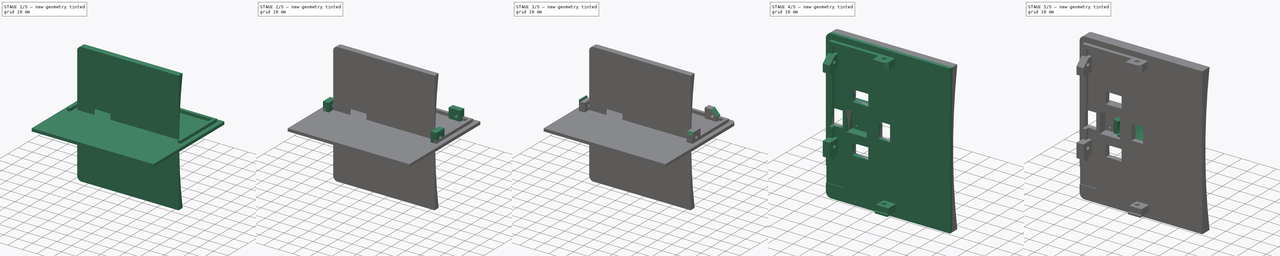
[diagram: build sequence overview — one tinted view per stage of 5, left to right]
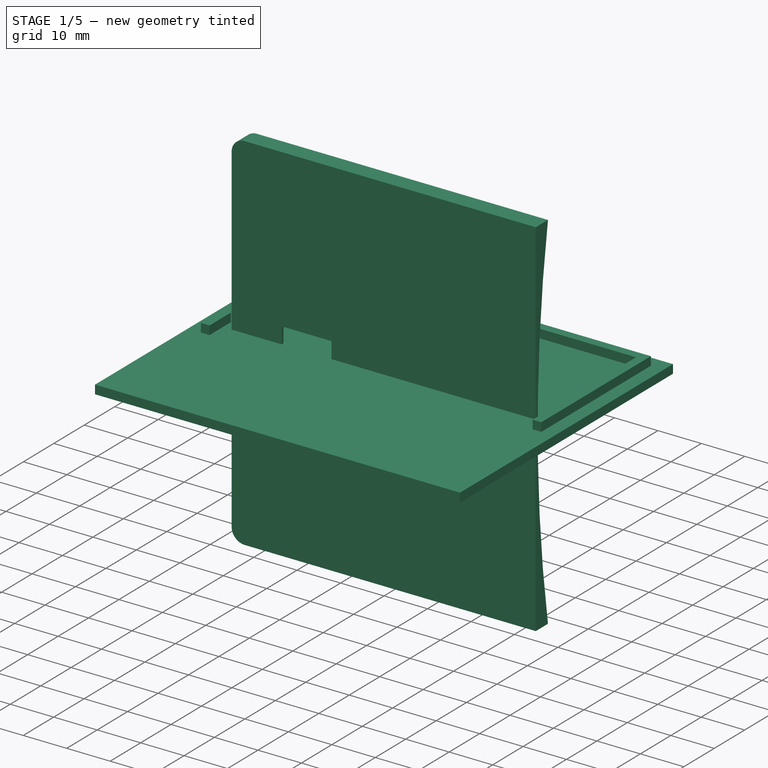
[diagram: stage 1 of 5 — iso view after this stage's code; geometry added in this stage tinted green]
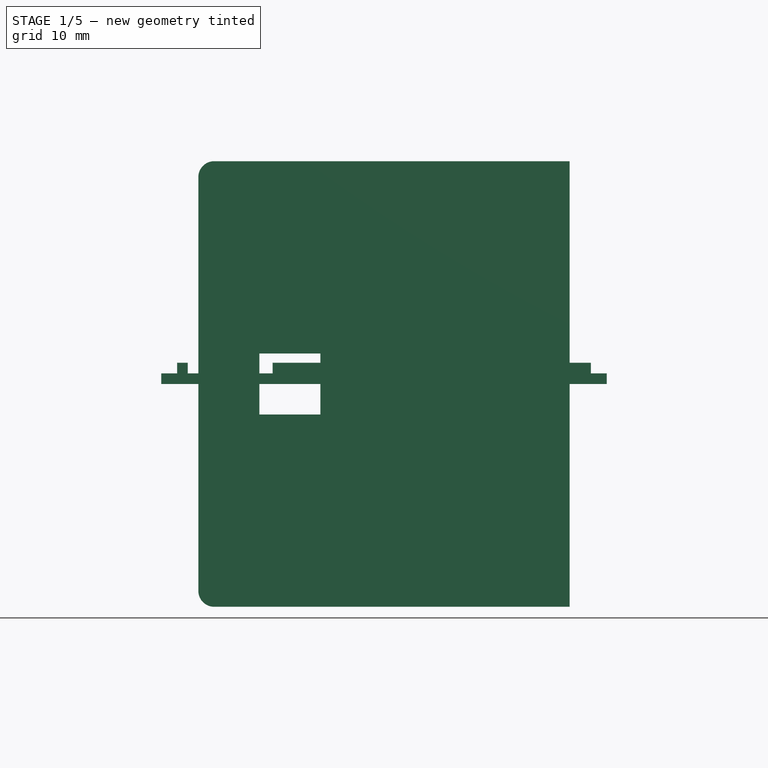
[diagram: stage 1 of 5 — front view after this stage's code; geometry added in this stage tinted green]
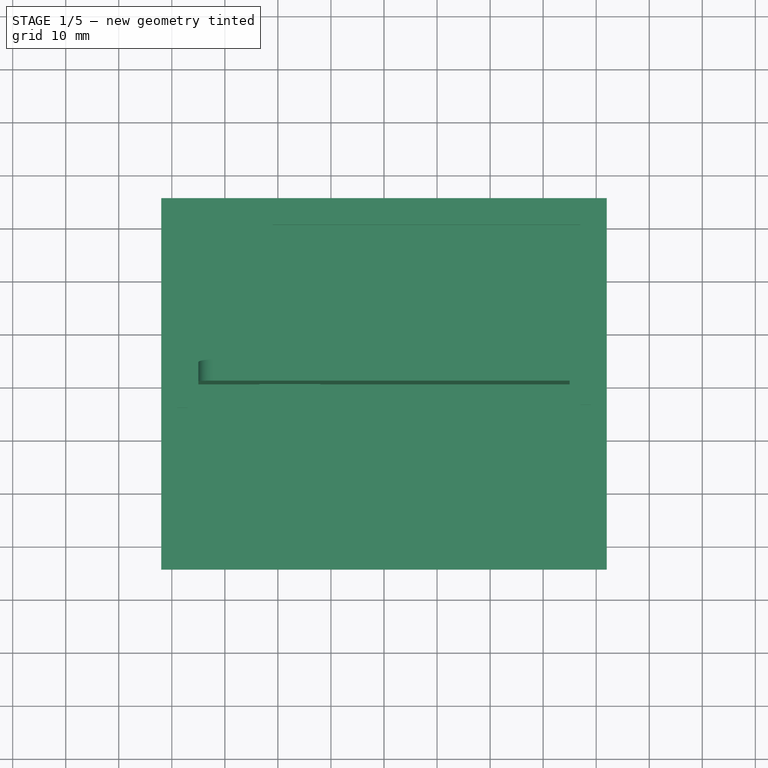
[diagram: stage 1 of 5 — top view after this stage's code; geometry added in this stage tinted green]
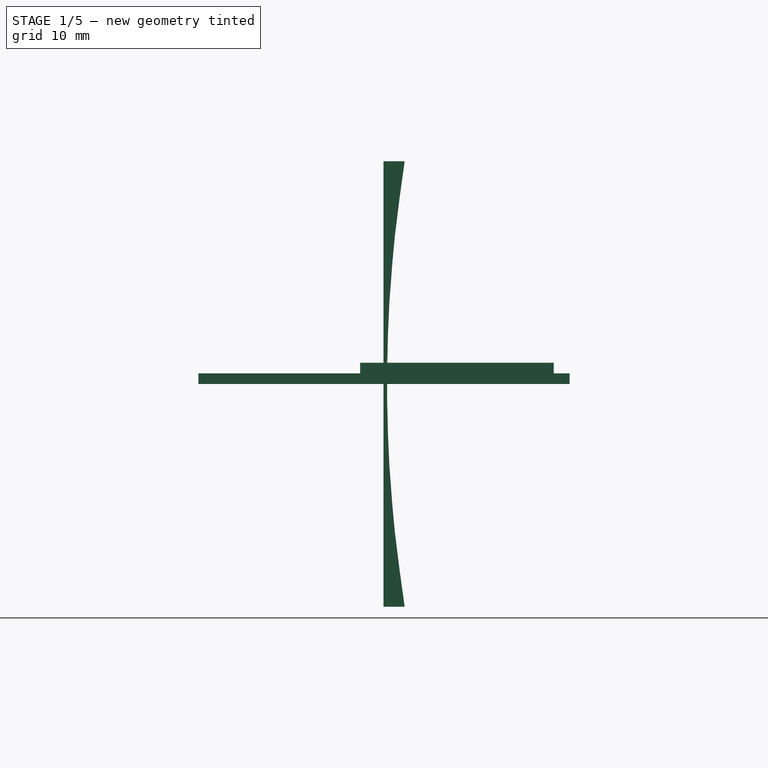
[diagram: stage 1 of 5 — right view after this stage's code; geometry added in this stage tinted green]
FCSTD DOCUMENT  (FreeCAD 0.21R33771 (Git))
Label: Modul-bojler_vertical_V2
License: All rights reserved
LicenseURL: http://en.wikipedia.org/wiki/All_rights_reserved
objects: Sketcher::SketchObject×21, PartDesign::Pad×10, PartDesign::Pocket×9, PartDesign::Body×4, PartDesign::Revolution×2, PartDesign::PolarPattern×2, PartDesign::Fillet×2, PartDesign::Boolean×1
note: 74 computed .brp shape members not serialized (recipe doc carries the construction recipe); baked Part::Feature solids carry a one-line shape summary decoded from their .brp

FEATURE [Sketcher::SketchObject] Sketch006
  AttachmentOffset = pos=(0,0,0) rot=(0,1,0;1.5708rad)
  FullyConstrained = true
  MapMode = 5
  Placement = pos=(0,0,0) rot=(0,1,0;1.5708rad)
  Support = -> [XY_Plane001]
  sketch-geometry (4):
    g0: ArcOfCircle CenterX=0 CenterY=262.512 CenterZ=0 NormalX=0 NormalY=0 NormalZ=1 AngleXU=0 Radius=262 StartAngle=4.55139 EndAngle=4.87339
    g1: LineSegment StartX=-42 StartY=3.9 StartZ=0 EndX=-42 EndY=-0.1 EndZ=0
    g2: LineSegment StartX=-42 StartY=-0.1 StartZ=0 EndX=42 EndY=-0.1 EndZ=0
    g3: LineSegment StartX=42 StartY=-0.1 StartZ=0 EndX=42 EndY=3.9 EndZ=0
  constraints (12):
    c: Radius(g0) = 262
    c: DistanceX(g0,g0) = 84
    c: Coincident(g1,g0)
    c: Vertical(g1)
    c: Coincident(g2,g1)
    c: Coincident(g3,g2)
    c: Coincident(g3,g0)
    c: Vertical(g3)
    c: DistanceY(g3,g3) = 4
    c: DistanceX(g0,g-1) = 0
    c: Symmetric(g1,g2,g-2)
    c: DistanceY(g1,g-1) = 0.1
FEATURE [PartDesign::Pad] Pad001
  Direction = (1,0,0)
  Length = 70
  Length2 = 10
  Midplane = true
  Profile = -> Sketch006
  ReferenceAxis = -> Sketch006 [N_Axis]
  Type = 0
FEATURE [Sketcher::SketchObject] Sketch007
  ExternalGeometry = -> [Pad001]
  FullyConstrained = true
  MapMode = 5
  Placement = pos=(0,-0.1,0) rot=(1,0,0;1.5708rad)
  Support = -> [Pad001]
  sketch-geometry (4):
    g0: LineSegment StartX=-12 StartY=5.75 StartZ=0 EndX=-23.5 EndY=5.75 EndZ=0
    g1: LineSegment StartX=-23.5 StartY=5.75 StartZ=0 EndX=-23.5 EndY=-5.75 EndZ=0
    g2: LineSegment StartX=-23.5 StartY=-5.75 StartZ=0 EndX=-12 EndY=-5.75 EndZ=0
    g3: LineSegment StartX=-12 StartY=-5.75 StartZ=0 EndX=-12 EndY=5.75 EndZ=0
  constraints (11):
    c: Coincident(g0,g1)
    c: Coincident(g1,g2)
    c: Coincident(g2,g3)
    c: Coincident(g3,g0)
    c: Horizontal(g2)
    c: Vertical(g1)
    c: Equal(g3,g0)
    c: DistanceY(g3,g3) = 11.5
    c: Horizontal(g0)
    c: Symmetric(g2,g0,g-1)
    c: DistanceX(g-3,g0) = 11.5
FEATURE [PartDesign::Pocket] Pocket001
  BaseFeature = -> Pad001
  Direction = (0,1,-2e-16)
  Length = 13
  Length2 = 5
  Profile = -> Sketch007
  ReferenceAxis = -> Sketch007 [N_Axis]
  Type = 0
FEATURE [PartDesign::Body] Body  label="Snap"
  Group = -> [Sketch,Revolution,Sketch001,Revolution001,PolarPattern,Sketch002,Pocket,PolarPattern001,Sketch008,Pad]
  Origin = -> Origin
  Placement = pos=(-15.54,0,0) rot=(0,0,1;0rad)
  Tip = -> Pad
FEATURE [Sketcher::SketchObject] Sketch009  label="Base"
  FullyConstrained = true
  MapMode = 5
  Support = -> [XY_Plane002]
  sketch-geometry (5):
    g0: LineSegment StartX=-42 StartY=35 StartZ=0 EndX=-42 EndY=-35 EndZ=0
    g1: LineSegment StartX=-42 StartY=-35 StartZ=0 EndX=42 EndY=-35 EndZ=0
    g2: LineSegment StartX=42 StartY=-35 StartZ=0 EndX=42 EndY=35 EndZ=0
    g3: LineSegment StartX=42 StartY=35 StartZ=0 EndX=-42 EndY=35 EndZ=0
    g4: GeomPoint X=0 Y=0 Z=0
  constraints (12):
    c: Coincident(g0,g1)
    c: Coincident(g1,g2)
    c: Coincident(g2,g3)
    c: Coincident(g3,g0)
    c: Horizontal(g1)
    c: Horizontal(g3)
    c: Vertical(g0)
    c: Vertical(g2)
    c: Symmetric(g1,g0,g4)
    c: Coincident(g4,g-1)
    c: DistanceX(g3,g3) = 84
    c: DistanceY(g2,g2) = 70
FEATURE [PartDesign::Pad] Pad002  label="Base001"
  Direction = (0,0,1)
  Length = 2
  Length2 = 10
  Profile = -> Sketch009
  ReferenceAxis = -> Sketch009 [N_Axis]
  Type = 0
FEATURE [Sketcher::SketchObject] Sketch010
  ExternalGeometry = -> [Pad002]
  FullyConstrained = true
  MapMode = 5
  Placement = pos=(0,0,2) rot=(0,0,1;0rad)
  Support = -> [Pad002]
  sketch-geometry (12):
    g0: LineSegment StartX=-39 StartY=-4.5 StartZ=0 EndX=-39 EndY=2.5 EndZ=0
    g1: LineSegment StartX=-21 StartY=32 StartZ=0 EndX=39 EndY=32 EndZ=0
    g2: LineSegment StartX=39 StartY=32 StartZ=0 EndX=39 EndY=-4 EndZ=0
    g3: LineSegment StartX=39 StartY=-4 StartZ=0 EndX=37 EndY=-4 EndZ=0
    g4: LineSegment StartX=37 StartY=-4 StartZ=0 EndX=37 EndY=30 EndZ=0
    g5: LineSegment StartX=37 StartY=30 StartZ=0 EndX=-21 EndY=30 EndZ=0
    g6: LineSegment StartX=-37 StartY=2.5 StartZ=0 EndX=-37 EndY=-4.5 EndZ=0
    g7: LineSegment StartX=-37 StartY=-4.5 StartZ=0 EndX=-39 EndY=-4.5 EndZ=0
    g8: LineSegment StartX=-21 StartY=32 StartZ=0 EndX=-21 EndY=30 EndZ=0
    g9: LineSegment StartX=-39 StartY=2.5 StartZ=0 EndX=-37 EndY=2.5 EndZ=0
    g10: LineSegment StartX=-21 StartY=32 StartZ=0 EndX=-39 EndY=32 EndZ=0
    g11: LineSegment StartX=-39 StartY=32 StartZ=0 EndX=-39 EndY=2.5 EndZ=0
  constraints (35):
    c: Vertical(g0)
    c: Horizontal(g1)
    c: Coincident(g2,g1)
    c: Vertical(g2)
    c: Coincident(g3,g2)
    c: Horizontal(g3)
    c: Coincident(g4,g3)
    c: Vertical(g4)
    c: Coincident(g5,g4)
    c: Horizontal(g5)
    c: Vertical(g6)
    c: Coincident(g7,g6)
    c: Coincident(g7,g0)
    c: Horizontal(g7)
    c: Horizontal(g9)
    c: Vertical(g8)
    c: Equal(g9,g8)
    c: Equal(g8,g3)
    c: Coincident(g1,g8)
    c: Coincident(g5,g8)
    c: Coincident(g6,g9)
    c: Coincident(g0,g9)
    c: Coincident(g10,g1)
    c: Horizontal(g10)
    c: Coincident(g11,g10)
    c: Coincident(g11,g0)
    c: Vertical(g11)
    c: DistanceX(g10,g1) = 78
    c: DistanceY(g0,g0) = 7
    c: DistanceY(g1,g-3) = 3
    c: DistanceX(g1,g1) = 60
    c: DistanceY(g2,g-3) = 39
    c: DistanceX(g3,g3) = 2
    c: DistanceX(g1,g-3) = 3
    c: DistanceY(g0,g10) = 29.5
FEATURE [PartDesign::Pad] Pad003
  BaseFeature = -> Pad002
  Direction = (0,0,1)
  Length = 2
  Length2 = 10
  Profile = -> Sketch010
  ReferenceAxis = -> Sketch010 [N_Axis]
  Type = 0
FEATURE [PartDesign::Body] Body003  label="Pin_guide"
  Group = -> [Sketch023,Sketch024,Pad009,Pad010]
  Origin = -> Origin003
  Placement = pos=(0,0.5,0) rot=(0,0,1;0rad)
  Tip = -> Pad010
FEATURE [PartDesign::Fillet] Fillet001
  Base = -> Pocket001 [Edge12,Edge10]
  BaseFeature = -> Pocket001
  Radius = 3
  SupportTransform = false
  UseAllEdges = false
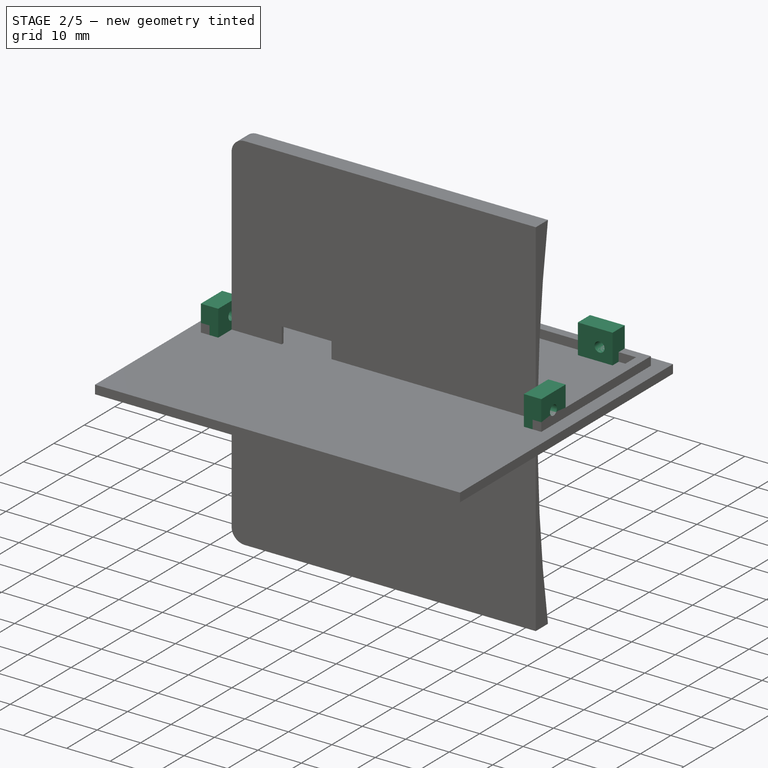
[diagram: stage 2 of 5 — iso view after this stage's code; geometry added in this stage tinted green]
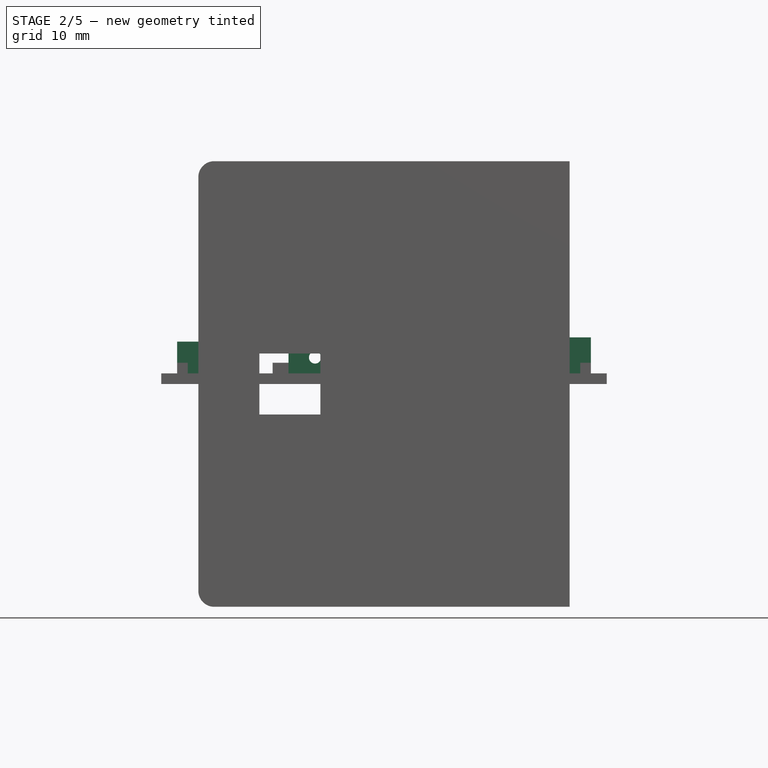
[diagram: stage 2 of 5 — front view after this stage's code; geometry added in this stage tinted green]
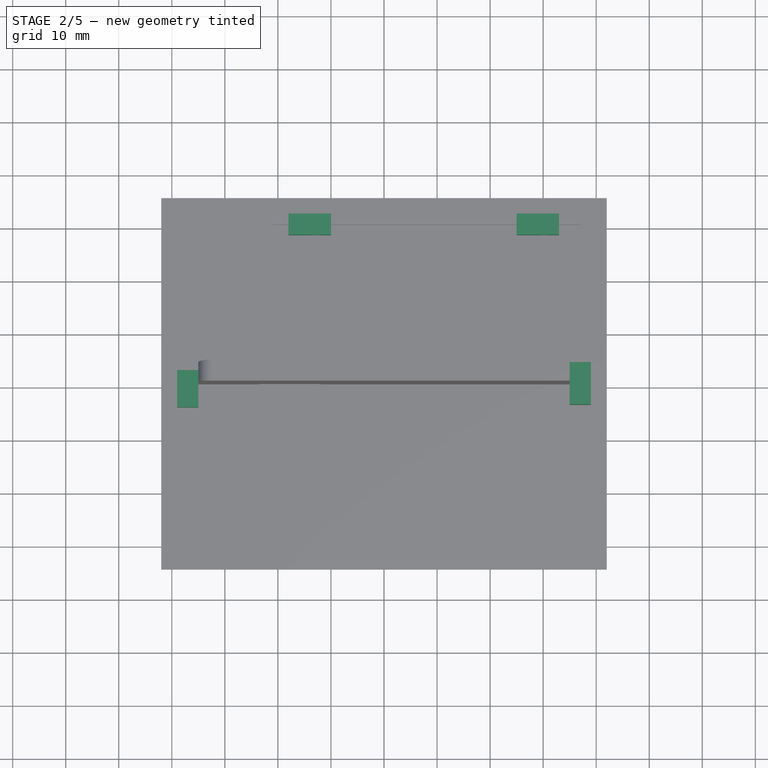
[diagram: stage 2 of 5 — top view after this stage's code; geometry added in this stage tinted green]
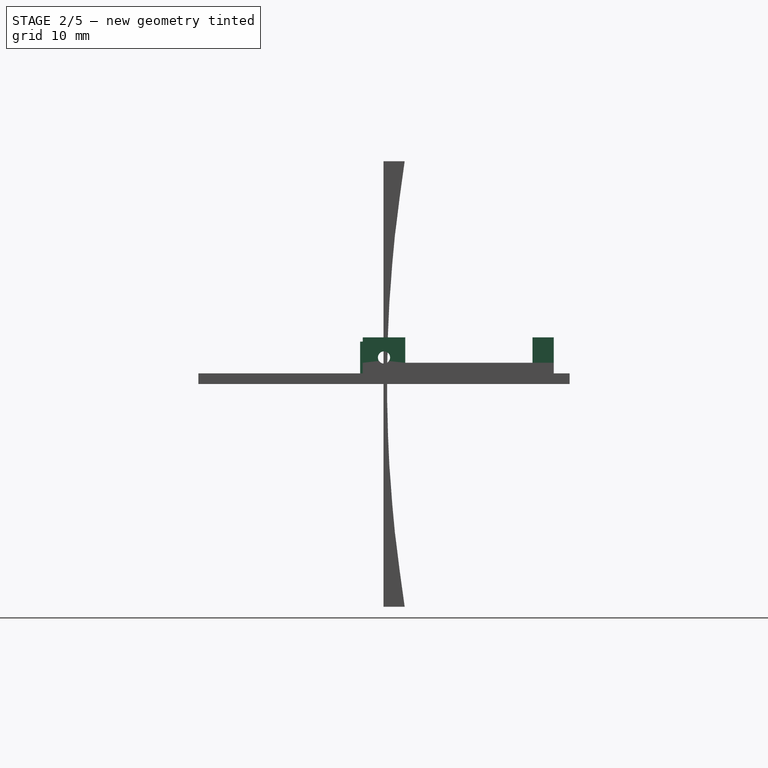
[diagram: stage 2 of 5 — right view after this stage's code; geometry added in this stage tinted green]
FEATURE [Sketcher::SketchObject] Sketch011
  ExternalGeometry = -> [Pad003]
  FullyConstrained = true
  MapMode = 5
  Placement = pos=(0,32,0) rot=(0,0.707107,0.707107;3.14159rad)
  Support = -> [Pad003]
  sketch-geometry (8):
    g0: LineSegment StartX=-25 StartY=8.8 StartZ=0 EndX=-25 EndY=2 EndZ=0
    g1: LineSegment StartX=18 StartY=8.8 StartZ=0 EndX=18 EndY=2 EndZ=0
    g2: LineSegment StartX=18 StartY=8.8 StartZ=0 EndX=10 EndY=8.8 EndZ=0
    g3: LineSegment StartX=10 StartY=8.8 StartZ=0 EndX=10 EndY=2 EndZ=0
    g4: LineSegment StartX=10 StartY=2 StartZ=0 EndX=18 EndY=2 EndZ=0
    g5: LineSegment StartX=-25 StartY=8.8 StartZ=0 EndX=-33 EndY=8.8 EndZ=0
    g6: LineSegment StartX=-33 StartY=8.8 StartZ=0 EndX=-33 EndY=2 EndZ=0
    g7: LineSegment StartX=-33 StartY=2 StartZ=0 EndX=-25 EndY=2 EndZ=0
  constraints (24):
    c: Vertical(g1)
    c: Vertical(g0)
    c: Equal(g1,g0)
    c: Horizontal(g-3,g0)
    c: Horizontal(g0,g1)
    c: DistanceX(g-3,g0) = 14
    c: DistanceX(g-3,g1) = 57
    c: Coincident(g2,g1)
    c: Horizontal(g2)
    c: Coincident(g3,g2)
    c: Vertical(g3)
    c: Coincident(g4,g3)
    c: Coincident(g4,g1)
    c: Horizontal(g4)
    c: Coincident(g5,g0)
    c: Horizontal(g5)
    c: Coincident(g6,g5)
    c: Coincident(g7,g6)
    c: Coincident(g7,g0)
    c: Vertical(g6)
    c: Horizontal(g7)
    c: DistanceX(g5,g5) = 8
    c: DistanceY(g6,g6) = 6.8
    c: Equal(g5,g2)
FEATURE [Sketcher::SketchObject] Sketch012
  ExternalGeometry = -> [Pad003]
  FullyConstrained = true
  MapMode = 5
  Placement = pos=(39,0,0) rot=(0.57735,0.57735,0.57735;2.0944rad)
  Support = -> [Pad003]
  sketch-geometry (4):
    g0: LineSegment StartX=4 StartY=2 StartZ=0 EndX=4 EndY=8.8 EndZ=0
    g1: LineSegment StartX=-4 StartY=2 StartZ=0 EndX=-4 EndY=8.8 EndZ=0
    g2: LineSegment StartX=4 StartY=8.8 StartZ=0 EndX=-4 EndY=8.8 EndZ=0
    g3: LineSegment StartX=-4 StartY=2 StartZ=0 EndX=4 EndY=2 EndZ=0
  constraints (12):
    c: Vertical(g0)
    c: Vertical(g1)
    c: Coincident(g2,g0)
    c: Coincident(g2,g1)
    c: Horizontal(g2)
    c: DistanceX(g0,g-3) = 31
    c: DistanceY(g-3,g0) = 6.8
    c: Coincident(g3,g1)
    c: Coincident(g3,g0)
    c: Horizontal(g3)
    c: Horizontal(g0,g-3)
    c: DistanceX(g2,g2) = 8
FEATURE [PartDesign::Pad] Pad004
  BaseFeature = -> Pad003
  Direction = (1,0,0)
  Length = 4
  Length2 = 10
  Profile = -> Sketch012
  ReferenceAxis = -> Sketch012 [N_Axis]
  Reversed = true
  Type = 0
FEATURE [Sketcher::SketchObject] Sketch013
  ExternalGeometry = -> [Pad004]
  FullyConstrained = true
  MapMode = 5
  Placement = pos=(-39,0,0) rot=(0.57735,-0.57735,-0.57735;2.0944rad)
  Support = -> [Pad004]
  sketch-geometry (4):
    g0: LineSegment StartX=-2.5 StartY=8 StartZ=0 EndX=4.5 EndY=8 EndZ=0
    g1: LineSegment StartX=4.5 StartY=8 StartZ=0 EndX=4.5 EndY=2 EndZ=0
    g2: LineSegment StartX=4.5 StartY=2 StartZ=0 EndX=-2.5 EndY=2 EndZ=0
    g3: LineSegment StartX=-2.5 StartY=2 StartZ=0 EndX=-2.5 EndY=8 EndZ=0
  constraints (10):
    c: Coincident(g0,g1)
    c: Coincident(g1,g2)
    c: Coincident(g2,g3)
    c: Coincident(g3,g0)
    c: Horizontal(g0)
    c: Vertical(g1)
    c: Vertical(g3)
    c: Coincident(g1,g-3)
    c: Coincident(g2,g-3)
    c: DistanceY(g1,g1) = 6
FEATURE [PartDesign::Pad] Pad005
  BaseFeature = -> Pad004
  Direction = (-1,0,0)
  Length = 4
  Length2 = 10
  Profile = -> Sketch013
  ReferenceAxis = -> Sketch013 [N_Axis]
  Reversed = true
  Type = 0
FEATURE [PartDesign::Pad] Pad006
  BaseFeature = -> Pad005
  Direction = (0,1,-2e-16)
  Length = 4
  Length2 = 10
  Profile = -> Sketch011
  ReferenceAxis = -> Sketch011 [N_Axis]
  Reversed = true
  Type = 0
FEATURE [Sketcher::SketchObject] Sketch014
  ExternalGeometry = -> [Pad006]
  FullyConstrained = true
  MapMode = 5
  Placement = pos=(39,0,0) rot=(0.57735,0.57735,0.57735;2.0944rad)
  Support = -> [Pad006]
  sketch-geometry (1):
    g0: Circle CenterX=-1.6e-15 CenterY=5 CenterZ=0 NormalX=0 NormalY=0 NormalZ=1 AngleXU=0 Radius=1.15
  constraints (3):
    c: Diameter(g0) = 2.3
    c: DistanceY(g-3,g0) = 3
    c: DistanceX(g0,g-3) = 4
FEATURE [PartDesign::Pocket] Pocket002
  BaseFeature = -> Pad006
  Direction = (-1,0,0)
  Length = 5
  Length2 = 5
  Profile = -> Sketch014
  ReferenceAxis = -> Sketch014 [N_Axis]
  Type = 1
FEATURE [Sketcher::SketchObject] Sketch016
  ExternalGeometry = -> [Pocket002]
  FullyConstrained = true
  MapMode = 5
  Placement = pos=(0,26.5,-1.2e-14) rot=(1,0,0;1.5708rad)
  sketch-geometry (2):
    g0: Circle CenterX=-13 CenterY=5 CenterZ=0 NormalX=0 NormalY=0 NormalZ=1 AngleXU=0 Radius=1.15
    g1: Circle CenterX=30 CenterY=5 CenterZ=0 NormalX=0 NormalY=0 NormalZ=1 AngleXU=0 Radius=1.15
  constraints (6):
    c: Equal(g0,g1)
    c: Diameter(g0) = 2.3
    c: Horizontal(g0,g1)
    c: DistanceX(g1,g-3) = 12
    c: DistanceX(g0,g-3) = 55
    c: DistanceY(g-3,g1) = 3
FEATURE [PartDesign::Pocket] Pocket003
  BaseFeature = -> Pocket002
  Direction = (0,1,-2e-16)
  Length = 5
  Length2 = 5
  Profile = -> Sketch016
  ReferenceAxis = -> Sketch016 [N_Axis]
  Type = 1
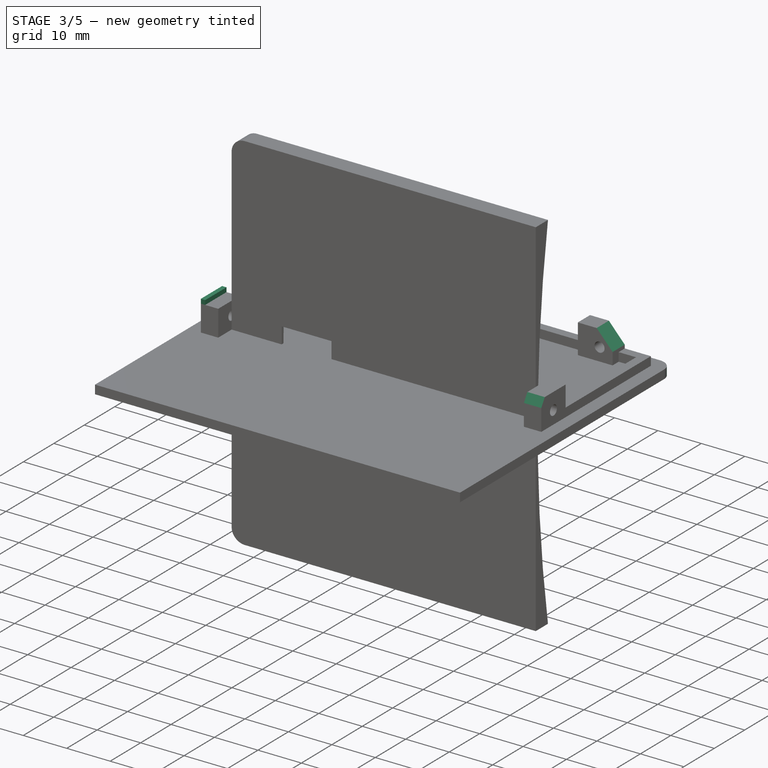
[diagram: stage 3 of 5 — iso view after this stage's code; geometry added in this stage tinted green]
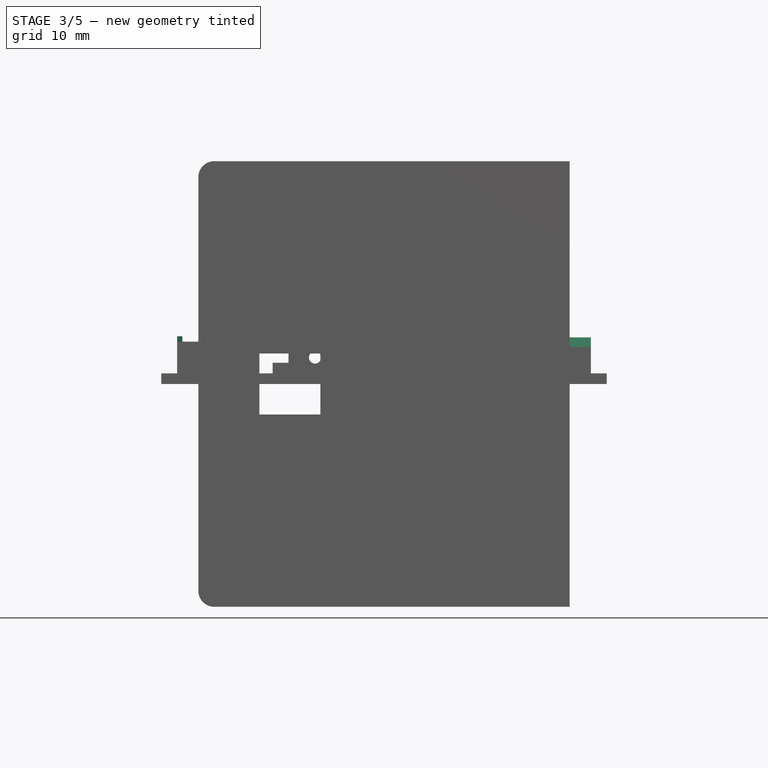
[diagram: stage 3 of 5 — front view after this stage's code; geometry added in this stage tinted green]
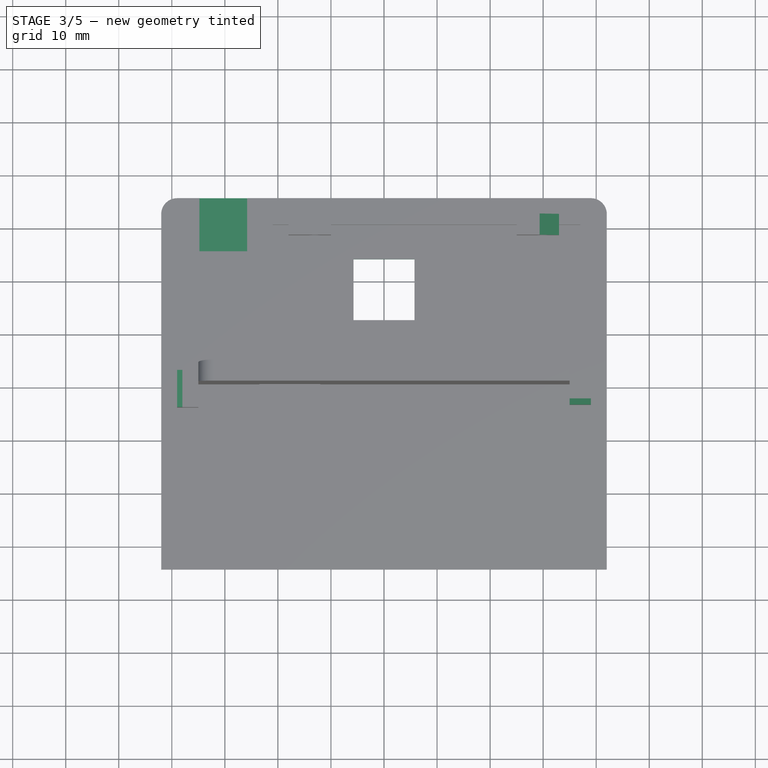
[diagram: stage 3 of 5 — top view after this stage's code; geometry added in this stage tinted green]
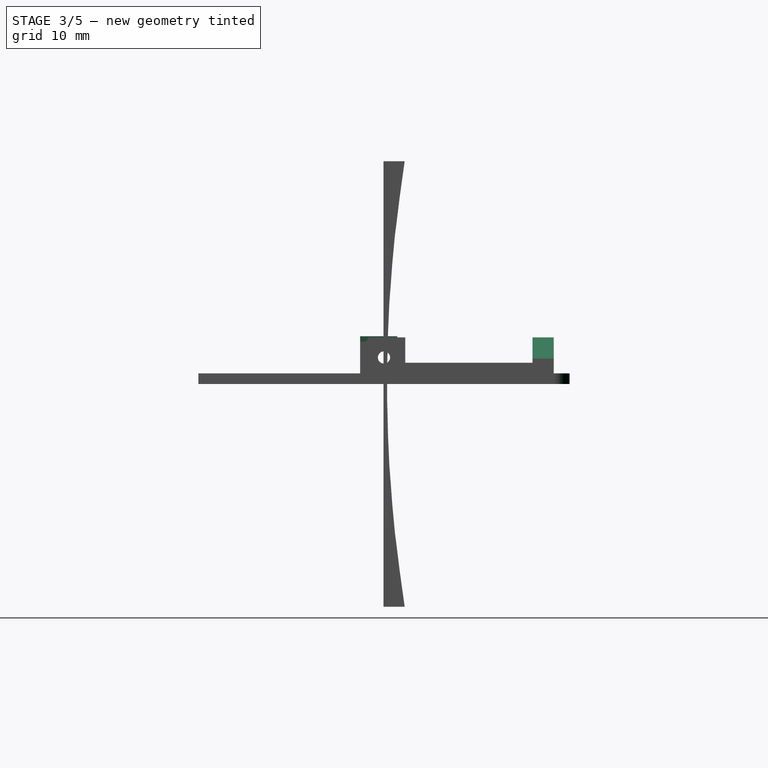
[diagram: stage 3 of 5 — right view after this stage's code; geometry added in this stage tinted green]
FEATURE [Sketcher::SketchObject] Sketch018  label="Konektor"
  ExternalGeometry = -> [Pocket003]
  FullyConstrained = true
  MapMode = 5
  Placement = pos=(0,0,2) rot=(0,0,1;0rad)
  Support = -> [Pocket003]
  sketch-geometry (4):
    g0: LineSegment StartX=-5.75 StartY=23.5 StartZ=0 EndX=5.75 EndY=23.5 EndZ=0
    g1: LineSegment StartX=5.75 StartY=23.5 StartZ=0 EndX=5.75 EndY=12 EndZ=0
    g2: LineSegment StartX=5.75 StartY=12 StartZ=0 EndX=-5.75 EndY=12 EndZ=0
    g3: LineSegment StartX=-5.75 StartY=12 StartZ=0 EndX=-5.75 EndY=23.5 EndZ=0
  constraints (11):
    c: Coincident(g0,g1)
    c: Coincident(g1,g2)
    c: Coincident(g2,g3)
    c: Coincident(g3,g0)
    c: Horizontal(g0)
    c: Vertical(g1)
    c: Vertical(g3)
    c: DistanceX(g0,g0) = 11.5
    c: Symmetric(g2,g1,g-2)
    c: Equal(g0,g1)
    c: DistanceY(g0,g-3) = 11.5
FEATURE [PartDesign::Pocket] Pocket004  label="Konektor001"
  BaseFeature = -> Pocket003
  Direction = (0,0,-1)
  Length = 5
  Length2 = 5
  Profile = -> Sketch018
  ReferenceAxis = -> Sketch018 [N_Axis]
  Type = 0
FEATURE [Sketcher::SketchObject] Sketch019
  FullyConstrained = false
  MapMode = 5
  Placement = pos=(0,28,0) rot=(1,0,0;1.5708rad)
  Support = -> [Pocket004]
  sketch-geometry (3):
    g0: LineSegment StartX=29.1259 StartY=9.0429 StartZ=0 EndX=33.2589 EndY=4.49973 EndZ=0
    g1: LineSegment StartX=33.2589 StartY=4.49973 StartZ=0 EndX=33.2589 EndY=9.0429 EndZ=0
    g2: LineSegment StartX=33.2589 StartY=9.0429 StartZ=0 EndX=29.1259 EndY=9.0429 EndZ=0
  constraints (5):
    c: Coincident(g1,g0)
    c: Vertical(g1)
    c: Coincident(g2,g1)
    c: Coincident(g2,g0)
    c: Horizontal(g2)
FEATURE [PartDesign::Pocket] Pocket005
  BaseFeature = -> Pocket004
  Direction = (0,1,-2e-16)
  Length = 5
  Length2 = 5
  Profile = -> Sketch019
  ReferenceAxis = -> Sketch019 [N_Axis]
  Type = 0
FEATURE [Sketcher::SketchObject] Sketch020
  FullyConstrained = false
  MapMode = 5
  Placement = pos=(35,0,0) rot=(0.57735,-0.57735,-0.57735;2.0944rad)
  Support = -> [Pocket005]
  sketch-geometry (3):
    g0: LineSegment StartX=2.77547 StartY=8.93844 StartZ=0 EndX=6.38617 EndY=3.07957 EndZ=0
    g1: LineSegment StartX=6.38617 StartY=3.07957 StartZ=0 EndX=6.38617 EndY=8.93844 EndZ=0
    g2: LineSegment StartX=6.38617 StartY=8.93844 StartZ=0 EndX=2.77547 EndY=8.93844 EndZ=0
  constraints (5):
    c: Coincident(g1,g0)
    c: Vertical(g1)
    c: Coincident(g2,g1)
    c: Horizontal(g2)
    c: Coincident(g0,g2)
FEATURE [PartDesign::Pocket] Pocket006
  BaseFeature = -> Pocket005
  Direction = (1,0,0)
  Length = 5
  Length2 = 5
  Profile = -> Sketch020
  ReferenceAxis = -> Sketch020 [N_Axis]
  Type = 0
FEATURE [Sketcher::SketchObject] Sketch021
  ExternalGeometry = -> [Pocket006]
  FullyConstrained = true
  MapMode = 5
  Placement = pos=(0,0,8) rot=(0,0,1;0rad)
  Support = -> [Pocket006]
  sketch-geometry (4):
    g0: LineSegment StartX=-39 StartY=2.5 StartZ=0 EndX=-38 EndY=2.5 EndZ=0
    g1: LineSegment StartX=-38 StartY=2.5 StartZ=0 EndX=-38 EndY=-4.5 EndZ=0
    g2: LineSegment StartX=-38 StartY=-4.5 StartZ=0 EndX=-39 EndY=-4.5 EndZ=0
    g3: LineSegment StartX=-39 StartY=-4.5 StartZ=0 EndX=-39 EndY=2.5 EndZ=0
  constraints (10):
    c: Coincident(g0,g1)
    c: Coincident(g1,g2)
    c: Coincident(g2,g3)
    c: Coincident(g3,g0)
    c: Horizontal(g0)
    c: Horizontal(g2)
    c: Vertical(g1)
    c: Coincident(g0,g-3)
    c: Coincident(g2,g-4)
    c: DistanceX(g2,g2) = 1
FEATURE [PartDesign::Pad] Pad007
  BaseFeature = -> Pocket006
  Direction = (0,0,1)
  Length = 1
  Length2 = 10
  Profile = -> Sketch021
  ReferenceAxis = -> Sketch021 [N_Axis]
  Type = 0
FEATURE [Sketcher::SketchObject] Sketch022
  ExternalGeometry = -> [Pocket005]
  FullyConstrained = true
  MapMode = 5
  Placement = pos=(0,0,2) rot=(0,0,1;0rad)
  Support = -> [Pocket005]
  sketch-geometry (4):
    g0: LineSegment StartX=-34.8 StartY=35 StartZ=0 EndX=-25.8 EndY=35 EndZ=0
    g1: LineSegment StartX=-25.8 StartY=35 StartZ=0 EndX=-25.8 EndY=25 EndZ=0
    g2: LineSegment StartX=-25.8 StartY=25 StartZ=0 EndX=-34.8 EndY=25 EndZ=0
    g3: LineSegment StartX=-34.8 StartY=25 StartZ=0 EndX=-34.8 EndY=35 EndZ=0
  constraints (12):
    c: Coincident(g0,g1)
    c: Coincident(g1,g2)
    c: Coincident(g2,g3)
    c: Coincident(g3,g0)
    c: Horizontal(g0)
    c: Horizontal(g2)
    c: Vertical(g1)
    c: Vertical(g3)
    c: DistanceY(g3,g3) = 10
    c: Horizontal(g0,g-3)
    c: DistanceX(g-3,g0) = 7.2
    c: DistanceX(g0,g0) = 9
FEATURE [PartDesign::Pocket] Pocket007
  BaseFeature = -> Pad007
  Direction = (0,0,-1)
  Length = 0.4
  Length2 = 5
  Profile = -> Sketch022
  ReferenceAxis = -> Sketch022 [N_Axis]
  Type = 0
FEATURE [PartDesign::Fillet] Fillet
  Base = -> Pocket007 [Edge11,Edge1]
  BaseFeature = -> Pocket007
  Radius = 3
  SupportTransform = false
  UseAllEdges = false
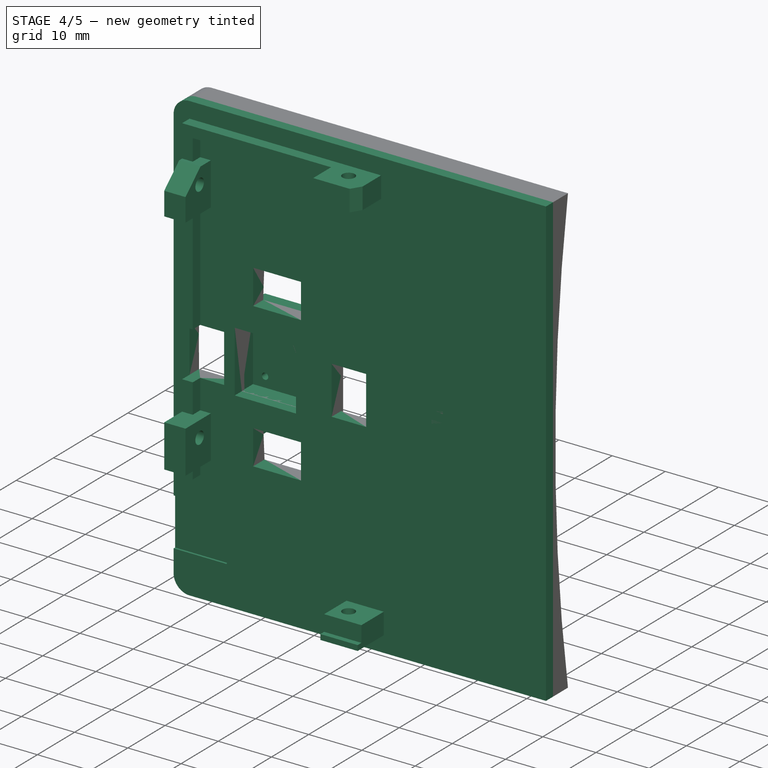
[diagram: stage 4 of 5 — iso view after this stage's code; geometry added in this stage tinted green]
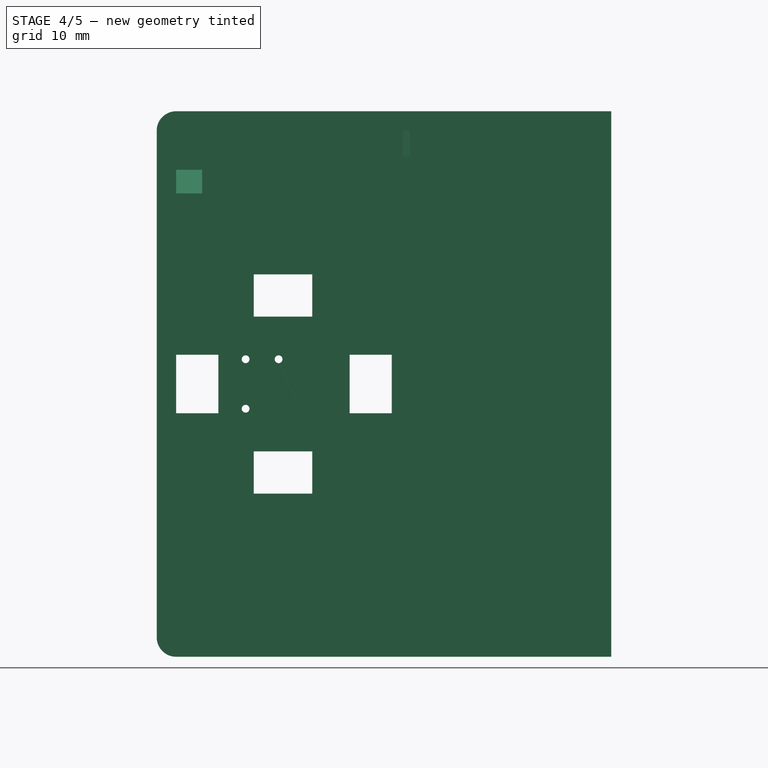
[diagram: stage 4 of 5 — front view after this stage's code; geometry added in this stage tinted green]
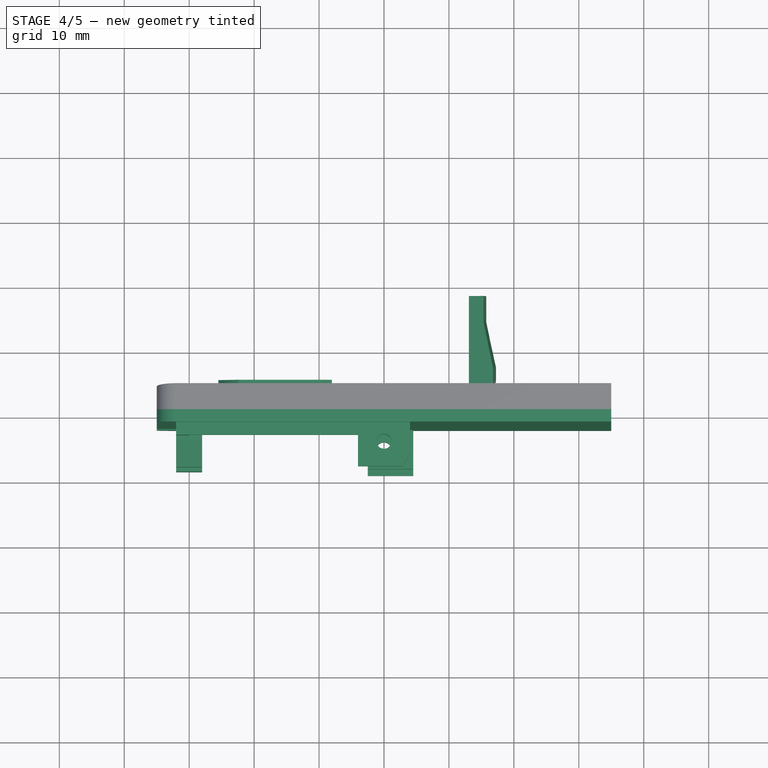
[diagram: stage 4 of 5 — top view after this stage's code; geometry added in this stage tinted green]
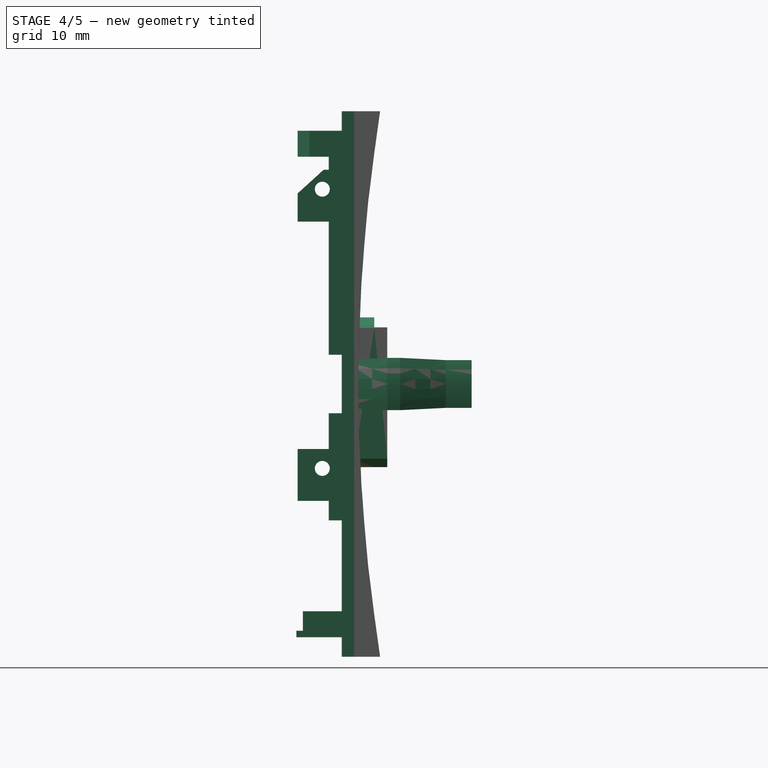
[diagram: stage 4 of 5 — right view after this stage's code; geometry added in this stage tinted green]
FEATURE [Sketcher::SketchObject] Sketch
  FullyConstrained = true
  MapMode = 5
  Support = -> [XY_Plane]
  sketch-geometry (7):
    g0: LineSegment StartX=15.75 StartY=-2 StartZ=0 EndX=17.25 EndY=5 EndZ=0
    g1: LineSegment StartX=17.25 StartY=5 StartZ=0 EndX=17.25 EndY=7 EndZ=0
    g2: LineSegment StartX=17.25 StartY=7 StartZ=0 EndX=15.75 EndY=14 EndZ=0
    g3: LineSegment StartX=15.75 StartY=14 StartZ=0 EndX=15.75 EndY=18 EndZ=0
    g4: LineSegment StartX=15.75 StartY=18 StartZ=0 EndX=13.45 EndY=18 EndZ=0
    g5: LineSegment StartX=13.45 StartY=18 StartZ=0 EndX=13.45 EndY=-2 EndZ=0
    g6: LineSegment StartX=15.75 StartY=-2 StartZ=0 EndX=13.45 EndY=-2 EndZ=0
  constraints (21):
    c: Coincident(g1,g0)
    c: Vertical(g1)
    c: Coincident(g2,g1)
    c: Coincident(g3,g2)
    c: Vertical(g3)
    c: Vertical(g0,g2)
    c: DistanceX(g0,g0) = 1.5
    c: DistanceY(g2,g2) = 7
    c: Coincident(g4,g3)
    c: Horizontal(g4)
    c: Coincident(g5,g4)
    c: Vertical(g5)
    c: DistanceX(g-1,g0) = 15.75
    c: DistanceX(g-1,g5) = 13.45
    c: DistanceY(g-1,g4) = 18
    c: Coincident(g6,g0)
    c: Coincident(g6,g5)
    c: Horizontal(g6)
    c: DistanceY(g1,g1) = 2
    c: DistanceY(g5,g-1) = 2
    c: DistanceY(g3,g3) = 4
FEATURE [PartDesign::Revolution] Revolution
  Angle = 27
  Axis = (0,1,0)
  Base = (0,0,0)
  Midplane = true
  Profile = -> Sketch
  ReferenceAxis = -> Sketch [V_Axis]
  Reversed = true
FEATURE [PartDesign::Body] Body002  label="Back"
  Group = -> [Sketch009,Pad002,Sketch010,Pad003,Sketch011,Sketch012,Pad004,Sketch013,Pad005,Pad006,Sketch014,Pocket002,Sketch016,Pocket003,Sketch018,Pocket004,Sketch019,Pocket005,Sketch020,Pocket006,Sketch021,Pad007,Sketch022,Pocket007,Fillet]
  Origin = -> Origin002
  Placement = pos=(0,0,0) rot=(0.57735,-0.57735,0.57735;2.0944rad)
  Tip = -> Fillet
FEATURE [Sketcher::SketchObject] Sketch024
  FullyConstrained = false
  MapMode = 5
  Placement = pos=(0,0,0) rot=(1,0,0;1.5708rad)
  Support = -> [XZ_Plane003]
  sketch-geometry (16):
    g0: LineSegment StartX=-23.5813 StartY=5.75 StartZ=0 EndX=-12 EndY=5.75 EndZ=0
    g1: LineSegment StartX=-12 StartY=5.75 StartZ=0 EndX=-12 EndY=-5.75 EndZ=0
    g2: LineSegment StartX=-12 StartY=-5.75 StartZ=0 EndX=-23.5813 EndY=-5.75 EndZ=0
    g3: GeomPoint X=-18.5 Y=0 Z=0
    g4: GeomPoint X=-18.5 Y=0 Z=0
    g5: LineSegment StartX=-20.4478 StartY=-10.25 StartZ=0 EndX=-10.6575 EndY=-10.25 EndZ=0
    g6: LineSegment StartX=-7.97053 StartY=8.6394 StartZ=0 EndX=-7.97053 EndY=-11.5098 EndZ=0
    g7: LineSegment StartX=-21.3127 StartY=10.25 StartZ=0 EndX=-10.6575 EndY=10.25 EndZ=0
    g8: ArcOfCircle CenterX=-15.0727 CenterY=-2e-15 CenterZ=0 NormalX=0 NormalY=0 NormalZ=1 AngleXU=0 Radius=12 StartAngle=2.11765 EndAngle=2.62385
    g9: ArcOfCircle CenterX=-15.2177 CenterY=-0.404485 CenterZ=0 NormalX=0 NormalY=0 NormalZ=1 AngleXU=0 Radius=11.5893 StartAngle=0.895245 EndAngle=1.16639
    g10: LineSegment StartX=-23.5813 StartY=5.75 StartZ=0 EndX=-23.5813 EndY=-5.75 EndZ=0
    g11: LineSegment StartX=-25.5 StartY=5.93903 StartZ=0 EndX=-25.5 EndY=-10.0724 EndZ=0
    g12: LineSegment StartX=-20.4478 StartY=-10.25 StartZ=0 EndX=-20.4478 EndY=-12.7512 EndZ=0
    g13: LineSegment StartX=-20.4478 StartY=-12.7512 StartZ=0 EndX=-25.5 EndY=-10.0724 EndZ=0
    g14: LineSegment StartX=-10.6575 StartY=-10.25 StartZ=0 EndX=-10.6575 EndY=-12.8034 EndZ=0
    g15: LineSegment StartX=-10.6575 StartY=-12.8034 StartZ=0 EndX=-7.97053 EndY=-11.5098 EndZ=0
  constraints (30):
    c: Coincident(g0,g1)
    c: Coincident(g1,g2)
    c: Horizontal(g0)
    c: Horizontal(g2)
    c: DistanceX(g8,g0) = 13.5
    c: DistanceX(g1,g-1) = 12
    c: Vertical(g1)
    c: Coincident(g3,g4)
    c: Horizontal(g5)
    c: Vertical(g6)
    c: Horizontal(g7)
    c: Coincident(g9,g7)
    c: Coincident(g8,g7)
    c: Coincident(g9,g6)
    c: DistanceY(g1,g1) = 11.5
    c: Symmetric(g7,g5,g-1)
    c: DistanceY(g5,g7) = 20.5
    c: Coincident(g11,g8)
    c: Coincident(g0,g10)
    c: Coincident(g2,g10)
    c: Symmetric(g0,g2,g-1)
    c: Vertical(g11)
    c: Coincident(g12,g5)
    c: Vertical(g12)
    c: Coincident(g13,g12)
    c: Coincident(g13,g11)
    c: Coincident(g14,g5)
    c: Vertical(g14)
    c: Coincident(g15,g14)
    c: Coincident(g15,g6)
FEATURE [PartDesign::Pad] Pad009
  Direction = (0,-1,-2e-16)
  Length = 3
  Length2 = 10
  Placement = pos=(0,0,0) rot=(1,0,0;1.5708rad)
  Profile = -> Sketch024
  ReferenceAxis = -> Sketch024 [N_Axis]
  Reversed = true
  Type = 0
FEATURE [Sketcher::SketchObject] Sketch023
  ExternalGeometry = -> [Pad009]
  FullyConstrained = false
  MapMode = 5
  Placement = pos=(0,3,7e-16) rot=(-1,0,0;1.5708rad)
  Support = -> [Pad009]
  sketch-geometry (12):
    g0: LineSegment StartX=-8.03456 StartY=11.5096 StartZ=0 EndX=-8.03456 EndY=-8.71162 EndZ=0
    g1: LineSegment StartX=-8.03456 StartY=-8.71162 StartZ=0 EndX=-22.3244 EndY=-8.71162 EndZ=0
    g2: LineSegment StartX=-25.4941 StartY=-5.26369 StartZ=0 EndX=-25.4941 EndY=10.068 EndZ=0
    g3: Circle CenterX=-21.31 CenterY=-3.81 CenterZ=0 NormalX=0 NormalY=0 NormalZ=1 AngleXU=0 Radius=0.6
    g4: Circle CenterX=-21.31 CenterY=3.81 CenterZ=0 NormalX=0 NormalY=0 NormalZ=1 AngleXU=0 Radius=0.6
    g5: Circle CenterX=-16.23 CenterY=-3.81 CenterZ=0 NormalX=0 NormalY=0 NormalZ=1 AngleXU=0 Radius=0.6
    g6: ArcOfCircle CenterX=-16.3033 CenterY=0.0045982 CenterZ=0 NormalX=0 NormalY=0 NormalZ=1 AngleXU=0 Radius=10.5937 StartAngle=3.66208 EndAngle=4.10787
    g7: LineSegment StartX=-10.6575 StartY=12.8034 StartZ=0 EndX=-10.6575 EndY=10.22 EndZ=0
    g8: LineSegment StartX=-10.6575 StartY=12.8034 StartZ=0 EndX=-8.03456 EndY=11.5096 EndZ=0
    g9: LineSegment StartX=-10.6575 StartY=10.22 StartZ=0 EndX=-20.4478 EndY=10.22 EndZ=0
    g10: LineSegment StartX=-20.4478 StartY=10.22 StartZ=0 EndX=-20.4478 EndY=12.7512 EndZ=0
    g11: LineSegment StartX=-20.4478 StartY=12.7512 StartZ=0 EndX=-25.4941 EndY=10.068 EndZ=0
  constraints (25):
    c: Coincident(g0,g1)
    c: Horizontal(g1)
    c: Vertical(g2)
    c: Horizontal(g5,g3)
    c: DistanceY(g3,g4) = 7.62
    c: DistanceX(g3,g5) = 5.08
    c: Diameter(g4) = 1.2
    c: Equal(g4,g3)
    c: Equal(g3,g5)
    c: Symmetric(g3,g4,g-1)
    c: DistanceX(g5,g-1) = 16.23
    c: Coincident(g2,g6)
    c: Coincident(g1,g6)
    c: Vertical(g7)
    c: Vertical(g0)
    c: Coincident(g8,g7)
    c: Coincident(g8,g0)
    c: Coincident(g7,g-3)
    c: Coincident(g9,g7)
    c: Horizontal(g9)
    c: Coincident(g10,g9)
    c: Vertical(g10)
    c: Coincident(g11,g10)
    c: Coincident(g11,g2)
    c: Coincident(g10,g-4)
FEATURE [PartDesign::Pad] Pad010
  BaseFeature = -> Pad009
  Direction = (0,1,2e-16)
  Length = 2
  Length2 = 10
  Placement = pos=(0,0,0) rot=(1,0,0;1.5708rad)
  Profile = -> Sketch023
  ReferenceAxis = -> Sketch023 [N_Axis]
  Type = 0
FEATURE [PartDesign::Boolean] Boolean
  BaseFeature = -> Fillet001
  Group = -> [Body002]
  Type = 0
FEATURE [Sketcher::SketchObject] Sketch025
  FullyConstrained = true
  MapMode = 5
  Placement = pos=(0,-2,0) rot=(1,0,0;1.5708rad)
  Support = -> [Boolean]
  sketch-geometry (19):
    g0: LineSegment StartX=-32 StartY=4.5 StartZ=0 EndX=-25.5 EndY=4.5 EndZ=0
    g1: LineSegment StartX=-25.5 StartY=4.5 StartZ=0 EndX=-25.5 EndY=-4.5 EndZ=0
    g2: LineSegment StartX=-25.5 StartY=-4.5 StartZ=0 EndX=-32 EndY=-4.5 EndZ=0
    g3: LineSegment StartX=-32 StartY=-4.5 StartZ=0 EndX=-32 EndY=4.5 EndZ=0
    g4: LineSegment StartX=-20.05 StartY=16.875 StartZ=0 EndX=-20.05 EndY=10.375 EndZ=0
    g5: LineSegment StartX=-20.05 StartY=10.375 StartZ=0 EndX=-11.05 EndY=10.375 EndZ=0
    g6: LineSegment StartX=-11.05 StartY=10.375 StartZ=0 EndX=-11.05 EndY=16.875 EndZ=0
    g7: LineSegment StartX=-11.05 StartY=16.875 StartZ=0 EndX=-20.05 EndY=16.875 EndZ=0
    g8: GeomPoint X=-15.55 Y=13.625 Z=0
    g9: LineSegment StartX=-5.3 StartY=4.5 StartZ=0 EndX=-5.3 EndY=-4.5 EndZ=0
    g10: LineSegment StartX=-5.3 StartY=-4.5 StartZ=0 EndX=1.2 EndY=-4.5 EndZ=0
    g11: LineSegment StartX=1.2 StartY=-4.5 StartZ=0 EndX=1.2 EndY=4.5 EndZ=0
    g12: LineSegment StartX=1.2 StartY=4.5 StartZ=0 EndX=-5.3 EndY=4.5 EndZ=0
    g13: GeomPoint X=-2.05 Y=0 Z=0
    g14: LineSegment StartX=-20.05 StartY=-10.375 StartZ=0 EndX=-20.05 EndY=-16.875 EndZ=0
    g15: LineSegment StartX=-20.05 StartY=-16.875 StartZ=0 EndX=-11.05 EndY=-16.875 EndZ=0
    g16: LineSegment StartX=-11.05 StartY=-16.875 StartZ=0 EndX=-11.05 EndY=-10.375 EndZ=0
    g17: LineSegment StartX=-11.05 StartY=-10.375 StartZ=0 EndX=-20.05 EndY=-10.375 EndZ=0
    g18: GeomPoint X=-15.55 Y=-13.625 Z=0
  constraints (49):
    c: Coincident(g0,g1)
    c: Coincident(g1,g2)
    c: Coincident(g2,g3)
    c: Coincident(g3,g0)
    c: Horizontal(g0)
    c: Horizontal(g2)
    c: Vertical(g3)
    c: Symmetric(g0,g1,g-1)
    c: DistanceX(g0,g0) = 6.5
    c: DistanceY(g3,g3) = 9
    c: Coincident(g4,g5)
    c: Coincident(g5,g6)
    c: Coincident(g6,g7)
    c: Coincident(g7,g4)
    c: Horizontal(g5)
    c: Horizontal(g7)
    c: Vertical(g4)
    c: Vertical(g6)
    c: Symmetric(g5,g4,g8)
    c: Coincident(g9,g10)
    c: Coincident(g10,g11)
    c: Coincident(g11,g12)
    c: Coincident(g12,g9)
    c: Horizontal(g10)
    c: Horizontal(g12)
    c: Vertical(g9)
    c: Vertical(g11)
    c: Symmetric(g10,g9,g13)
    c: Coincident(g14,g15)
    c: Coincident(g15,g16)
    c: Coincident(g16,g17)
    c: Coincident(g17,g14)
    c: Horizontal(g15)
    c: Horizontal(g17)
    c: Vertical(g14)
    c: Vertical(g16)
    c: Symmetric(g15,g14,g18)
    c: Equal(g0,g12)
    c: Equal(g12,g4)
    c: Equal(g4,g14)
    c: Equal(g9,g17)
    c: Equal(g17,g7)
    c: Equal(g7,g3)
    c: PointOnObject(g13,g-1)
    c: Symmetric(g18,g8,g-1)
    c: DistanceY(g16,g5) = 20.75
    c: DistanceX(g5,g9) = 5.75
    c: DistanceX(g-1,g10) = 1.2
    c: DistanceX(g1,g-1) = 25.5
FEATURE [PartDesign::Pocket] Pocket008
  BaseFeature = -> Boolean
  Direction = (0,1,-2e-16)
  Length = 16
  Length2 = 5
  Midplane = true
  Profile = -> Sketch025
  ReferenceAxis = -> Sketch025 [N_Axis]
  Type = 0
FEATURE [PartDesign::Body] Body001  label="Curve"
  Group = -> [Sketch006,Pad001,Sketch007,Pocket001,Fillet001,Boolean,Sketch025,Pocket008]
  Origin = -> Origin001
  Tip = -> Pocket008
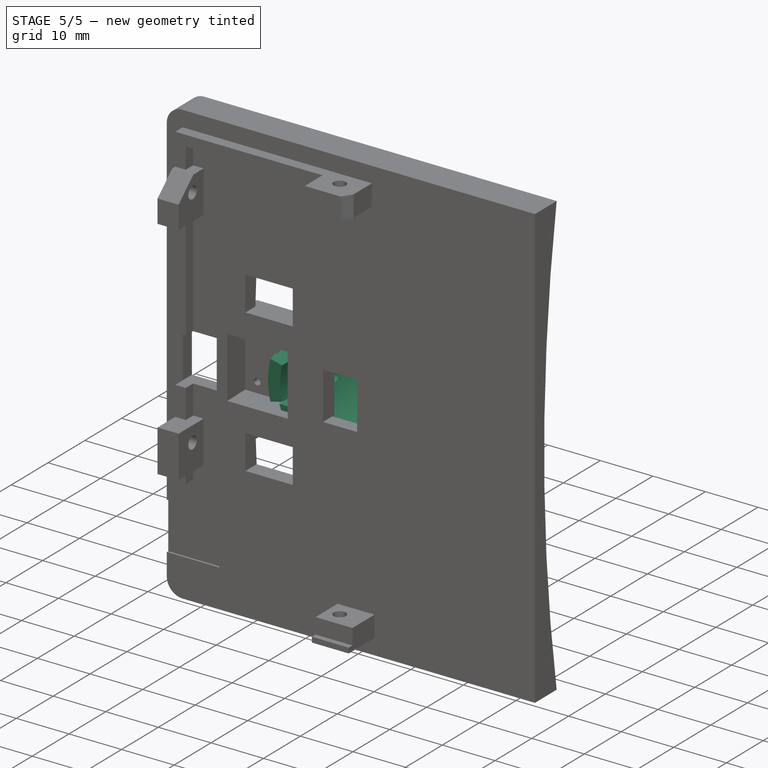
[diagram: stage 5 of 5 — iso view after this stage's code; geometry added in this stage tinted green]
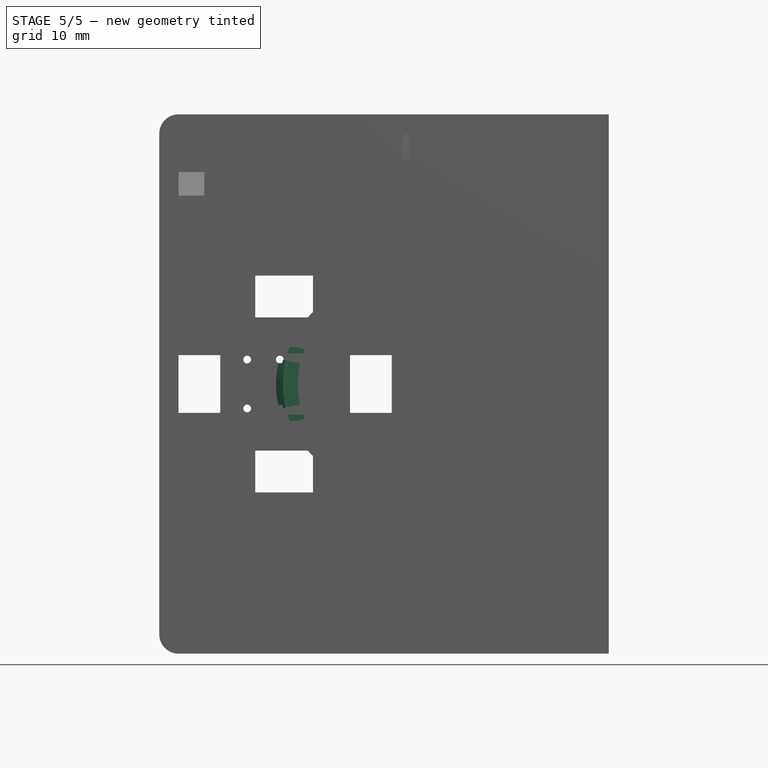
[diagram: stage 5 of 5 — front view after this stage's code; geometry added in this stage tinted green]
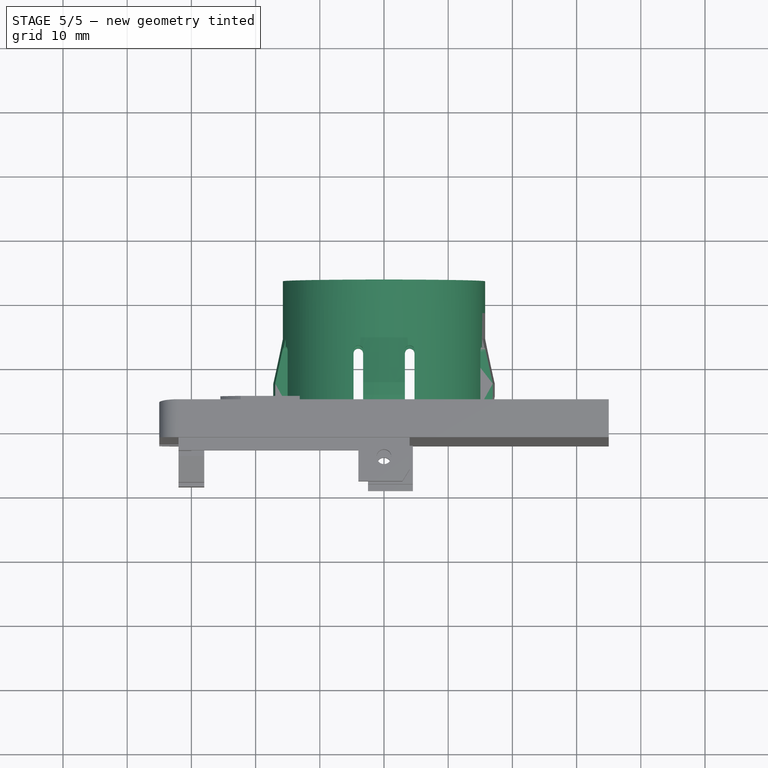
[diagram: stage 5 of 5 — top view after this stage's code; geometry added in this stage tinted green]
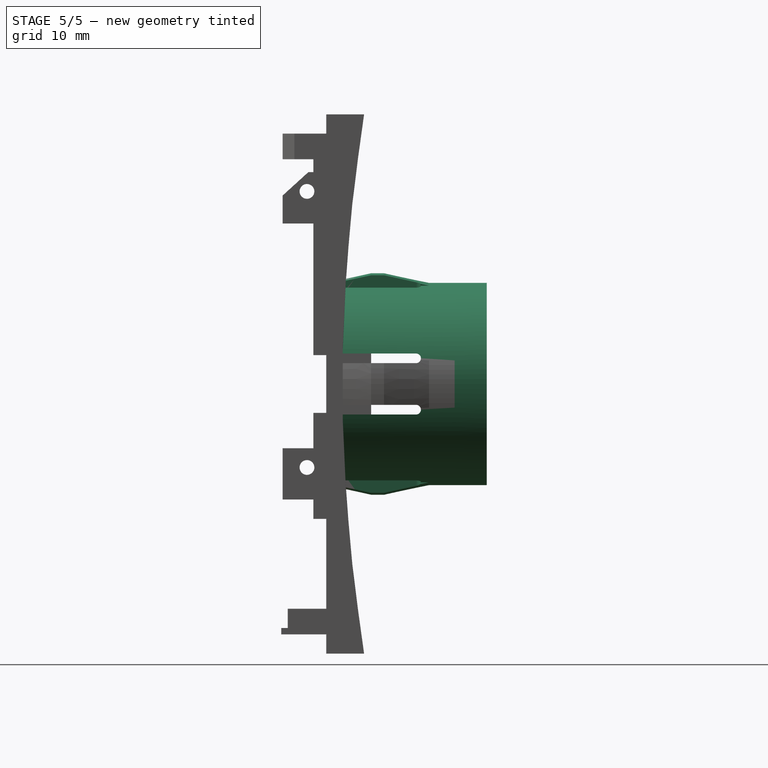
[diagram: stage 5 of 5 — right view after this stage's code; geometry added in this stage tinted green]
FEATURE [Sketcher::SketchObject] Sketch001
  ExternalGeometry = -> [Revolution]
  FullyConstrained = true
  MapMode = 5
  Placement = pos=(1e-16,0,4e-16) rot=(0.993068,0,-0.117537;3.14159rad)
  Support = -> [Revolution]
  sketch-geometry (4):
    g0: LineSegment StartX=13.45 StartY=-18 StartZ=0 EndX=15.75 EndY=-18 EndZ=0
    g1: LineSegment StartX=15.75 StartY=-18 StartZ=0 EndX=15.75 EndY=0 EndZ=0
    g2: LineSegment StartX=13.45 StartY=0 StartZ=0 EndX=13.45 EndY=-18 EndZ=0
    g3: LineSegment StartX=13.45 StartY=0 StartZ=0 EndX=15.75 EndY=0 EndZ=0
  constraints (11):
    c: Coincident(g0,g1)
    c: Coincident(g2,g0)
    c: Horizontal(g0)
    c: Vertical(g1)
    c: Vertical(g2)
    c: Coincident(g0,g-3)
    c: PointOnObject(g2,g-1)
    c: PointOnObject(g-4,g1)
    c: PointOnObject(g1,g-1)
    c: Coincident(g3,g2)
    c: Coincident(g3,g1)
FEATURE [PartDesign::Revolution] Revolution001
  Angle = 63
  Axis = (0,-1,0)
  Base = (-1e-16,0,-4e-16)
  BaseFeature = -> Revolution
  Profile = -> Sketch001
  ReferenceAxis = -> Sketch001 [V_Axis]
  Reversed = true
FEATURE [PartDesign::PolarPattern] PolarPattern
  Angle = 360
  Axis = -> Sketch [V_Axis]
  BaseFeature = -> Revolution001
  Occurrences = 4
  Originals = -> [Revolution,Revolution001]
FEATURE [Sketcher::SketchObject] Sketch002
  FullyConstrained = true
  MapMode = 5
  Support = -> [XY_Plane]
  sketch-geometry (8):
    g0: LineSegment StartX=-4.75 StartY=12 StartZ=0 EndX=-4.75 EndY=0 EndZ=0
    g1: LineSegment StartX=-3.25 StartY=12 StartZ=0 EndX=-3.25 EndY=0 EndZ=0
    g2: LineSegment StartX=3.25 StartY=0 StartZ=0 EndX=3.25 EndY=12 EndZ=0
    g3: LineSegment StartX=4.75 StartY=12 StartZ=0 EndX=4.75 EndY=0 EndZ=0
    g4: LineSegment StartX=3.25 StartY=0 StartZ=0 EndX=4.75 EndY=0 EndZ=0
    g5: LineSegment StartX=-4.75 StartY=0 StartZ=0 EndX=-3.25 EndY=0 EndZ=0
    g6: ArcOfCircle CenterX=-4 CenterY=12 CenterZ=0 NormalX=0 NormalY=0 NormalZ=1 AngleXU=0 Radius=0.75 StartAngle=6e-16 EndAngle=3.14159
    g7: ArcOfCircle CenterX=4 CenterY=12 CenterZ=0 NormalX=0 NormalY=0 NormalZ=1 AngleXU=0 Radius=0.75 StartAngle=6.1612e-12 EndAngle=3.14159
  constraints (25):
    c: PointOnObject(g0,g-1)
    c: Vertical(g0)
    c: PointOnObject(g1,g-1)
    c: Vertical(g1)
    c: Vertical(g2)
    c: PointOnObject(g3,g-1)
    c: Vertical(g3)
    c: Coincident(g4,g2)
    c: Coincident(g4,g3)
    c: Coincident(g5,g0)
    c: Coincident(g5,g1)
    c: DistanceX(g1,g2) = 6.5
    c: Symmetric(g1,g2,g-1)
    c: Equal(g2,g1)
    c: DistanceX(g0,g1) = 1.5
    c: DistanceY(g0,g0) = 12
    c: Equal(g4,g5)
    c: Equal(g3,g1)
    c: Equal(g0,g1)
    c: Coincident(g6,g0)
    c: Coincident(g6,g1)
    c: Coincident(g7,g2)
    c: Coincident(g7,g3)
    c: Horizontal(g6,g1)
    c: Horizontal(g7,g2)
FEATURE [PartDesign::Pocket] Pocket
  BaseFeature = -> PolarPattern
  Direction = (0,0,-1)
  Length = 5
  Length2 = 5
  Profile = -> Sketch002
  ReferenceAxis = -> Sketch002 [N_Axis]
  Type = 1
FEATURE [PartDesign::PolarPattern] PolarPattern001
  Angle = 360
  Axis = -> Sketch002 [V_Axis]
  BaseFeature = -> Pocket
  Occurrences = 4
  Originals = -> [Pocket]
FEATURE [Sketcher::SketchObject] Sketch008
  FullyConstrained = false
  MapMode = 5
  Placement = pos=(0,18,0) rot=(0,0.707107,0.707107;3.14159rad)
  Support = -> [PolarPattern001]
  sketch-geometry (2):
    g0: Circle CenterX=0 CenterY=0 CenterZ=0 NormalX=0 NormalY=0 NormalZ=1 AngleXU=0 Radius=15.75
    g1: Circle CenterX=0 CenterY=0 CenterZ=0 NormalX=0 NormalY=0 NormalZ=1 AngleXU=0 Radius=14.5
  constraints (2):
    c: Coincident(g1,g0)
    c: Diameter(g1) = 29
FEATURE [PartDesign::Pad] Pad
  BaseFeature = -> PolarPattern001
  Direction = (0,1,-2e-16)
  Length = 5
  Length2 = 10
  Profile = -> Sketch008
  ReferenceAxis = -> Sketch008 [N_Axis]
  Type = 0
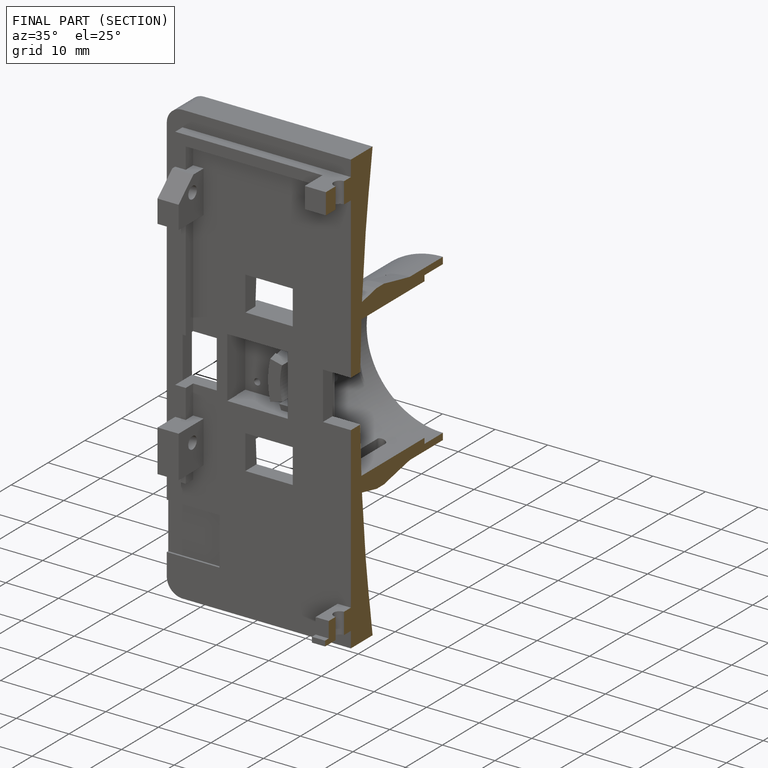
[diagram: finished part — half-section view (interior)]
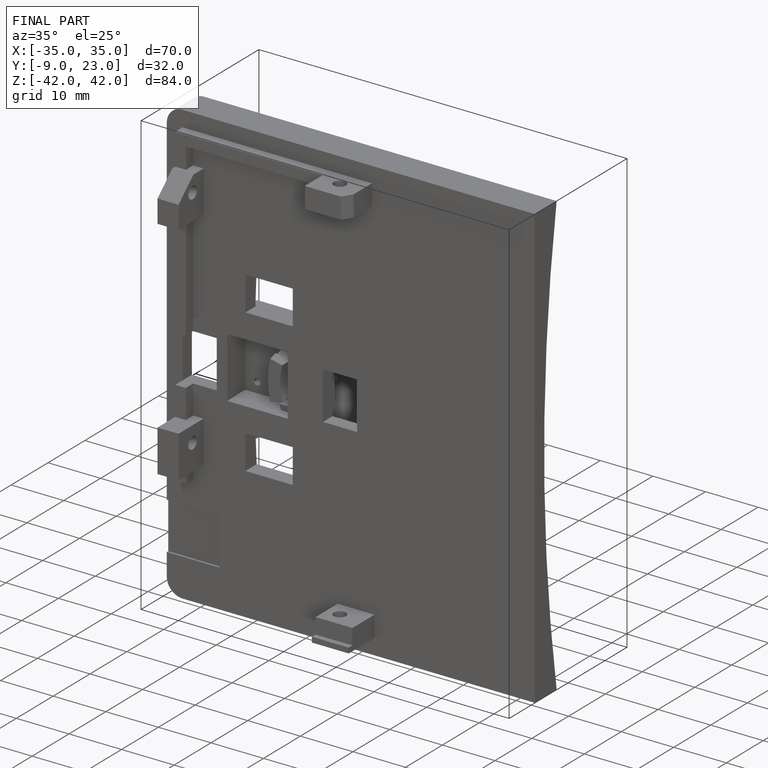
[diagram: finished part — iso view with bounding-box wireframe]
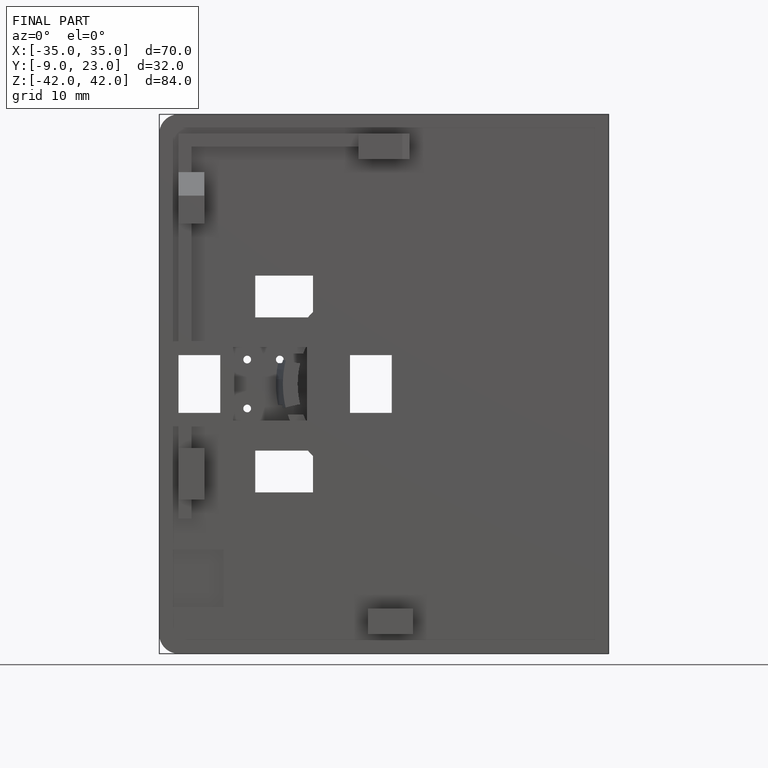
[diagram: finished part — front view with bounding-box wireframe]
